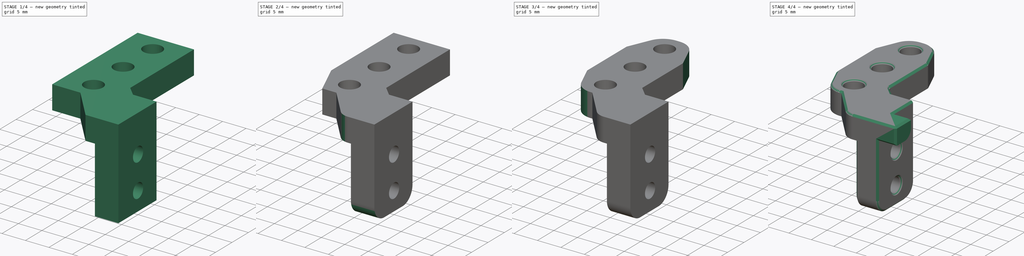
[diagram: build sequence overview — one tinted view per stage of 4, left to right]
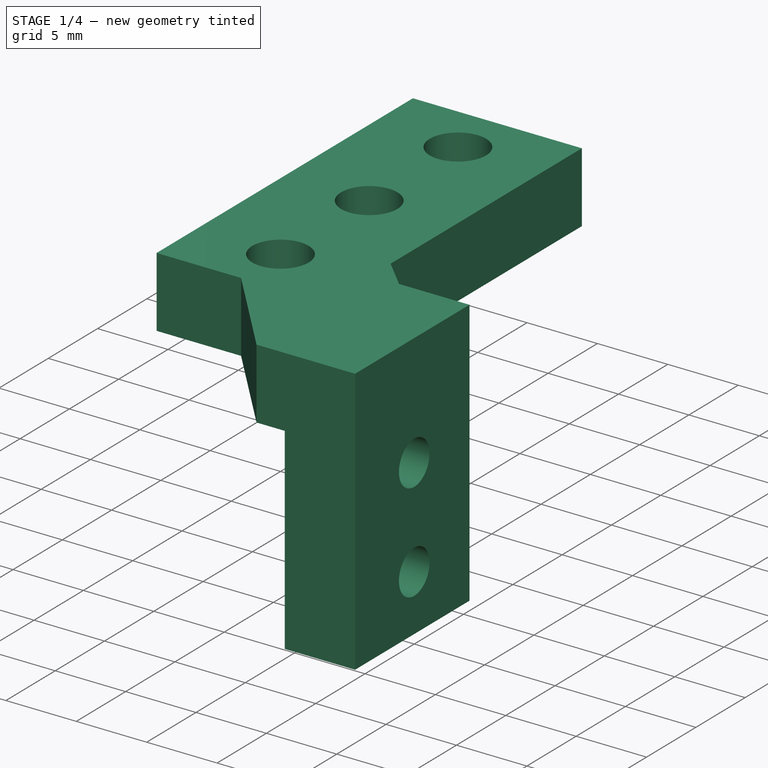
[diagram: stage 1 of 4 — iso view after this stage's code; geometry added in this stage tinted green]
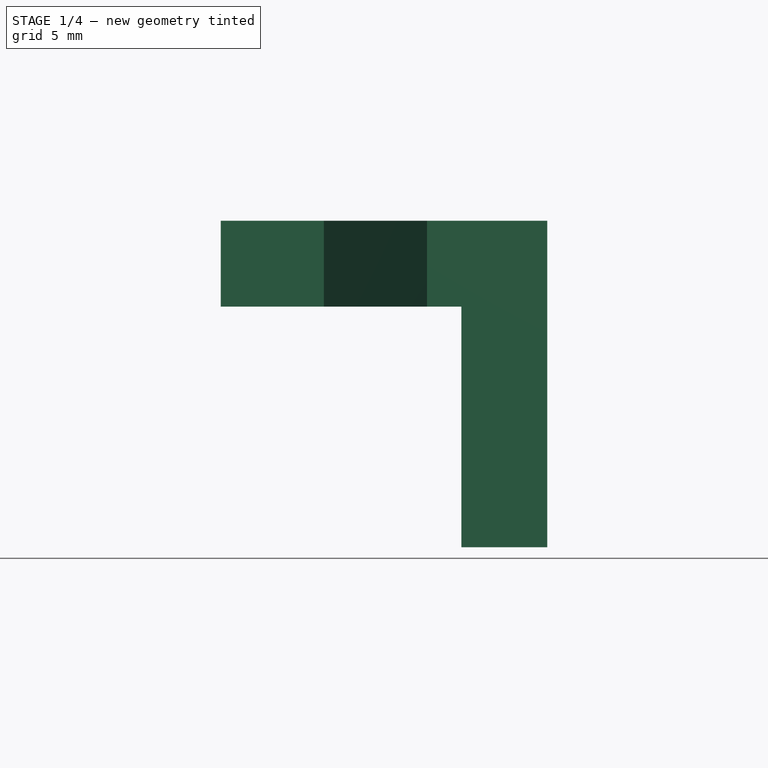
[diagram: stage 1 of 4 — front view after this stage's code; geometry added in this stage tinted green]
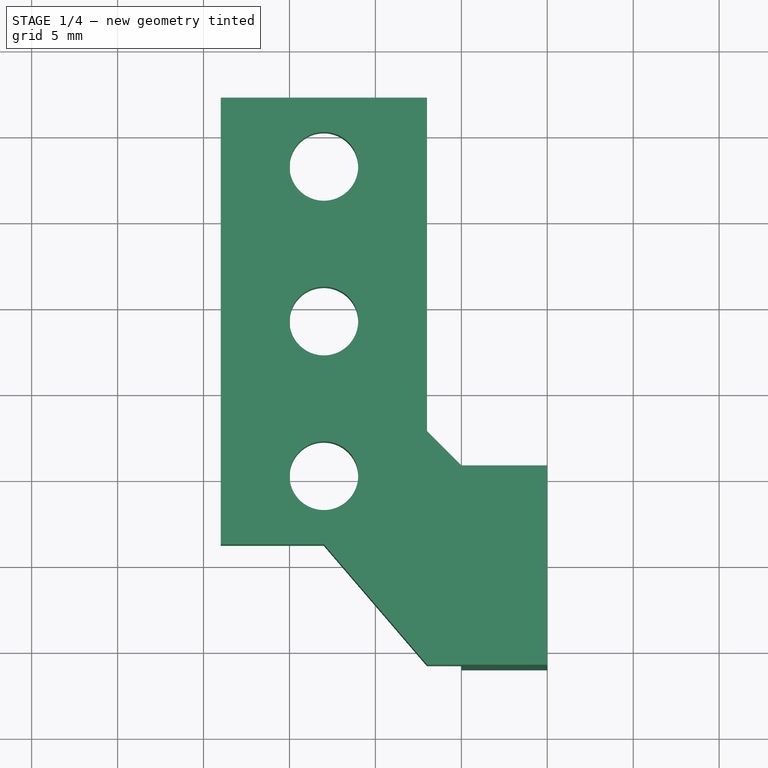
[diagram: stage 1 of 4 — top view after this stage's code; geometry added in this stage tinted green]
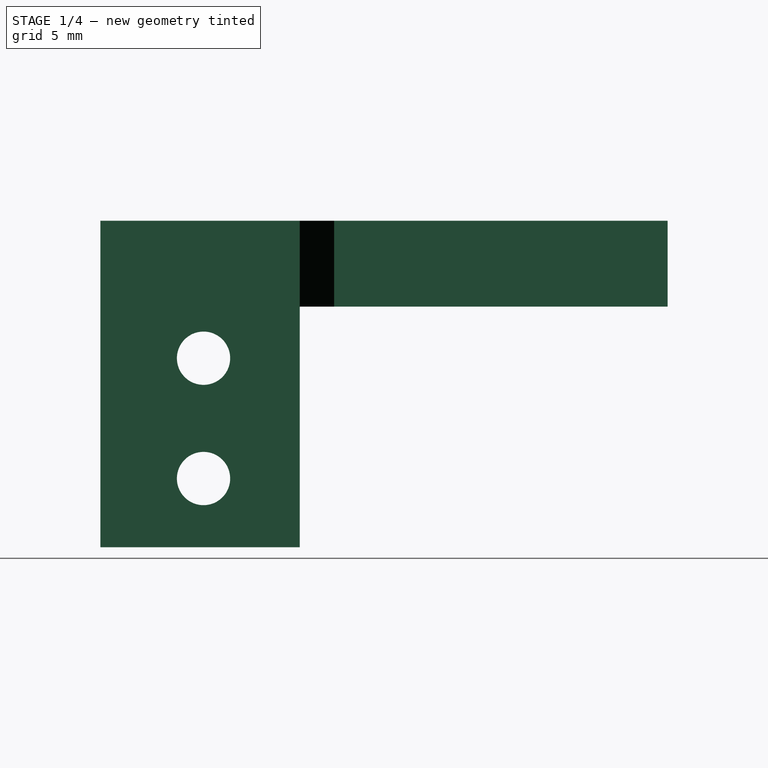
[diagram: stage 1 of 4 — right view after this stage's code; geometry added in this stage tinted green]
FCSTD DOCUMENT  (FreeCAD 0.19R24366 (Git))
Label: probe-mount
License: All rights reserved
LicenseURL: http://en.wikipedia.org/wiki/All_rights_reserved
objects: Part::Feature×10, PartDesign::Chamfer×5, PartDesign::Fillet×5, Sketcher::SketchObject×4, PartDesign::Pad×3, App::Part×1, PartDesign::Pocket×1, PartDesign::Body×1
note: 43 computed .brp shape members not serialized (recipe doc carries the construction recipe); baked Part::Feature solids carry a one-line shape summary decoded from their .brp

FEATURE [Part::Feature] Chamfer001  label="front-PREF"
  Placement = pos=(16.5,0,-11) rot=(0,0,1;0rad)
  shape: bbox 33 x 27 x 43 mm, 58 faces (baked)
FEATURE [Part::Feature] Chamfer005021077002004001  label="back-PREF"
  Placement = pos=(0,16,0) rot=(0,0,1;0rad)
  shape: bbox 76.8 x 27 x 53 mm, 121 faces (baked)
FEATURE [Part::Feature] Chamfer013001  label="fan-mounter-PREF"
  Placement = pos=(16.5,-16,-11) rot=(1,0,0;1.5708rad)
  shape: bbox 60.95 x 12 x 48.7 mm, 129 faces (baked)
FEATURE [Part::Feature] Part__Feature051  label="bear-duct-PREF"
  Placement = pos=(16.525,0,-28.53) rot=(0,0,1;0rad)
  shape: bbox 46.01 x 38.99 x 18.01 mm, 128 faces (baked)
FEATURE [Part::Feature] Part__Feature027  label="block"
  Placement = pos=(-15,-8,-14.1) rot=(0,0,1;0rad)
  shape: bbox 23 x 16 x 11.5 mm, 37 faces (baked)
FEATURE [Part::Feature] Part__Feature028  label="nozzle"
  Placement = pos=(7e-15,-3.6e-14,-7) rot=(1,0,0;3.14159rad)
  shape: bbox 7 x 8.083 x 12.5 mm, 18 faces (baked)
FEATURE [Part::Feature] Part__Feature024  label="sink"
  Placement = pos=(0,-4e-15,-1e-15) rot=(0,0,1;0rad)
  shape: bbox 22.3 x 22.3 x 44.7 mm, 70 faces (baked)
FEATURE [Part::Feature] Part__Feature025  label="ptfe"
  Placement = pos=(4e-15,-3.6e-14,9.6) rot=(0,0,1;0rad)
  shape: bbox 4 x 4 x 50 mm, 6 faces (baked)
FEATURE [Part::Feature] Part__Feature026  label="break"
  Placement = pos=(4e-15,-3.6e-14,15) rot=(1,0,0;3.14159rad)
  shape: bbox 6.884 x 6.884 x 22.1 mm, 15 faces (baked)
FEATURE [App::Part] e3d_v6_v18  label="e3d_v6 v18"
  Group = -> [Part__Feature024,Part__Feature025,Part__Feature026,Part__Feature027,Part__Feature028]
  Origin = -> Origin009
  Placement = pos=(16.5,1.8e-15,-10.7) rot=(0,0,-1;1.5708rad)
FEATURE [Part::Feature] Part__Feature112001140  label="BL-touch v3.x003"
  Placement = pos=(-12.4942,-8.00647,13.3013) rot=(0,0,1;4.71239rad)
  shape: bbox 16.53 x 26.01 x 53.81 mm, 111 faces (baked)
FEATURE [Sketcher::SketchObject] Sketch
  FullyConstrained = true
  MapMode = 5
  Support = -> [XY_Plane]
  sketch-geometry (11):
    g0: Circle CenterX=-13 CenterY=23 CenterZ=0 NormalX=0 NormalY=0 NormalZ=1 AngleXU=0 Radius=2
    g1: Circle CenterX=-13 CenterY=14 CenterZ=0 NormalX=0 NormalY=0 NormalZ=1 AngleXU=0 Radius=2
    g2: Circle CenterX=-13 CenterY=5 CenterZ=0 NormalX=0 NormalY=0 NormalZ=1 AngleXU=0 Radius=2
    g3: LineSegment StartX=0 StartY=5.6 StartZ=0 EndX=0 EndY=-6 EndZ=0
    g4: LineSegment StartX=-19 StartY=27 StartZ=0 EndX=-19 EndY=1 EndZ=0
    g5: LineSegment StartX=-19 StartY=1 StartZ=0 EndX=-13 EndY=1 EndZ=0
    g6: LineSegment StartX=-19 StartY=27 StartZ=0 EndX=-7 EndY=27 EndZ=0
    g7: LineSegment StartX=-7 StartY=27 StartZ=0 EndX=-7 EndY=5.6 EndZ=0
    g8: LineSegment StartX=0 StartY=5.6 StartZ=0 EndX=-7 EndY=5.6 EndZ=0
    g9: LineSegment StartX=0 StartY=-6 StartZ=0 EndX=-7 EndY=-6 EndZ=0
    g10: LineSegment StartX=-13 StartY=1 StartZ=0 EndX=-7 EndY=-6 EndZ=0
  constraints (33):
    c: Vertical(g2,g1)
    c: Vertical(g1,g0)
    c: DistanceY(g2,g0) = 18
    c: DistanceY(g1,g0) = 9
    c: Equal(g0,g2)
    c: Radius(g0) = 2
    c: Radius(g1) = 2
    c: DistanceX(g1,g-1) = 13
    c: DistanceY(g-1,g1) = 14
    c: PointOnObject(g3,g-2)
    c: PointOnObject(g3,g-2)
    c: DistanceY(g-1,g3) = 5.6
    c: DistanceY(g3,g3) = 11.6
    c: Vertical(g4)
    c: Coincident(g4,g5)
    c: Horizontal(g5)
    c: Coincident(g4,g6)
    c: Horizontal(g6)
    c: Coincident(g6,g7)
    c: Vertical(g7)
    c: DistanceX(g4,g0) = 6
    c: DistanceX(g6,g6) = 12
    c: DistanceY(g0,g4) = 4
    c: DistanceY(g4,g2) = 4
    c: Coincident(g8,g3)
    c: Horizontal(g8)
    c: Coincident(g8,g7)
    c: Coincident(g9,g3)
    c: Horizontal(g9)
    c: Vertical(g9,g7)
    c: Coincident(g10,g5)
    c: Coincident(g10,g9)
    c: DistanceX(g5,g9) = 6
FEATURE [PartDesign::Pad] Pad
  Direction = (1,1,1)
  Length = 5
  Length2 = 100
  Profile = -> Sketch
  Type = 0
FEATURE [Sketcher::SketchObject] Sketch001
  ExternalGeometry = -> [Pad]
  FullyConstrained = true
  MapMode = 5
  Placement = pos=(0,0,0) rot=(1,0,0;3.14159rad)
  Support = -> [Pad]
  sketch-geometry (4):
    g0: LineSegment StartX=0 StartY=6 StartZ=0 EndX=-5 EndY=6 EndZ=0
    g1: LineSegment StartX=-5 StartY=6 StartZ=0 EndX=-5 EndY=-5.6 EndZ=0
    g2: LineSegment StartX=-5 StartY=-5.6 StartZ=0 EndX=0 EndY=-5.6 EndZ=0
    g3: LineSegment StartX=0 StartY=-5.6 StartZ=0 EndX=0 EndY=6 EndZ=0
  constraints (11):
    c: Coincident(g0,g1)
    c: Coincident(g1,g2)
    c: Coincident(g2,g3)
    c: Coincident(g3,g0)
    c: Horizontal(g0)
    c: Horizontal(g2)
    c: Vertical(g1)
    c: Vertical(g3)
    c: Coincident(g0,g-3)
    c: PointOnObject(g1,g-4)
    c: DistanceX(g0,g0) = 5
FEATURE [PartDesign::Pad] Pad001
  BaseFeature = -> Pad
  Direction = (1,1,1)
  Length = 14
  Length2 = 100
  Profile = -> Sketch001
  Type = 0
FEATURE [Sketcher::SketchObject] Sketch002
  ExternalGeometry = -> [Pad001]
  FullyConstrained = true
  MapMode = 5
  Placement = pos=(-5,0,0) rot=(0.57735,-0.57735,-0.57735;2.0944rad)
  Support = -> [Pad001]
  sketch-geometry (2):
    g0: Circle CenterX=-3e-16 CenterY=-3 CenterZ=0 NormalX=0 NormalY=0 NormalZ=1 AngleXU=0 Radius=1.55
    g1: Circle CenterX=-3e-16 CenterY=-10 CenterZ=0 NormalX=0 NormalY=0 NormalZ=1 AngleXU=0 Radius=1.55
  constraints (6):
    c: Vertical(g1,g0)
    c: DistanceX(g-3,g0) = 5.6
    c: DistanceY(g0,g-1) = 3
    c: DistanceY(g1,g0) = 7
    c: Equal(g1,g0)
    c: Radius(g0) = 1.55
FEATURE [PartDesign::Pocket] Pocket
  BaseFeature = -> Pad001
  Length = 5
  Length2 = 100
  Profile = -> Sketch002
  Type = 1
FEATURE [PartDesign::Chamfer] Chamfer
  Angle = 45
  Base = -> Pocket [Edge8]
  BaseFeature = -> Pocket
  ChamferType = 0
  FlipDirection = false
  Refine = true
  Size = 2
  Size2 = 1
  SupportTransform = false
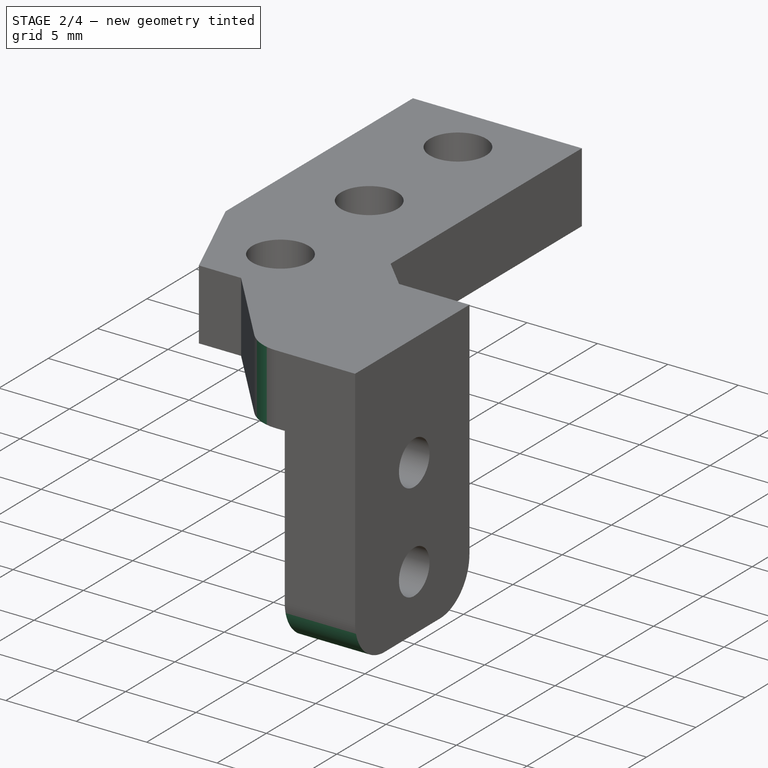
[diagram: stage 2 of 4 — iso view after this stage's code; geometry added in this stage tinted green]
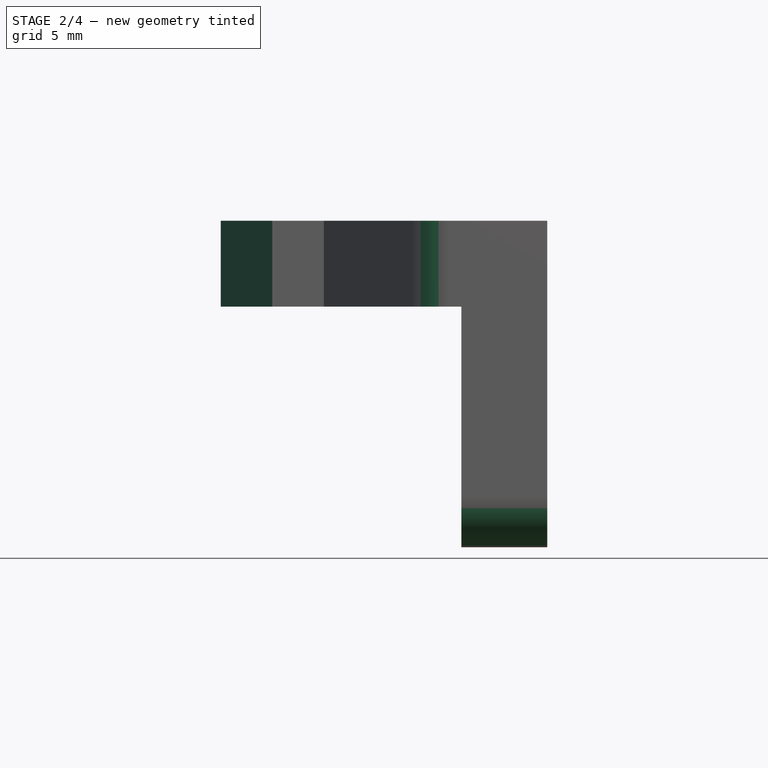
[diagram: stage 2 of 4 — front view after this stage's code; geometry added in this stage tinted green]
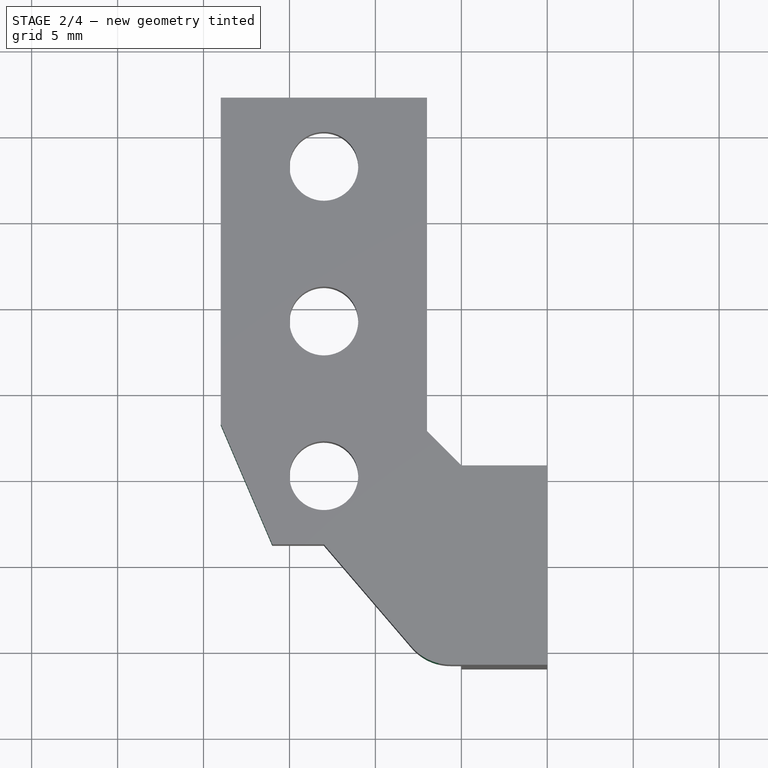
[diagram: stage 2 of 4 — top view after this stage's code; geometry added in this stage tinted green]
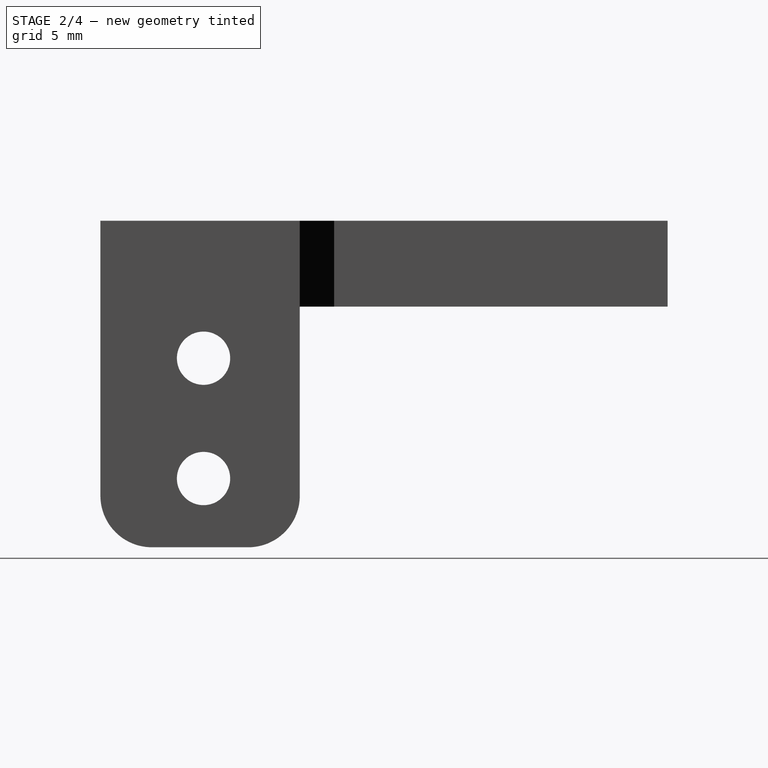
[diagram: stage 2 of 4 — right view after this stage's code; geometry added in this stage tinted green]
FEATURE [PartDesign::Fillet] Fillet
  Base = -> Chamfer [Edge35]
  BaseFeature = -> Chamfer
  Radius = 3
  SupportTransform = false
FEATURE [PartDesign::Fillet] Fillet001
  Base = -> Fillet [Edge48,Edge16]
  BaseFeature = -> Fillet
  Radius = 3
  SupportTransform = false
FEATURE [PartDesign::Chamfer] Chamfer005021077002004002
  Angle = 45
  Base = -> Fillet001 [Edge50]
  BaseFeature = -> Fillet001
  ChamferType = 1
  FlipDirection = false
  Size = 3
  Size2 = 7
  SupportTransform = false
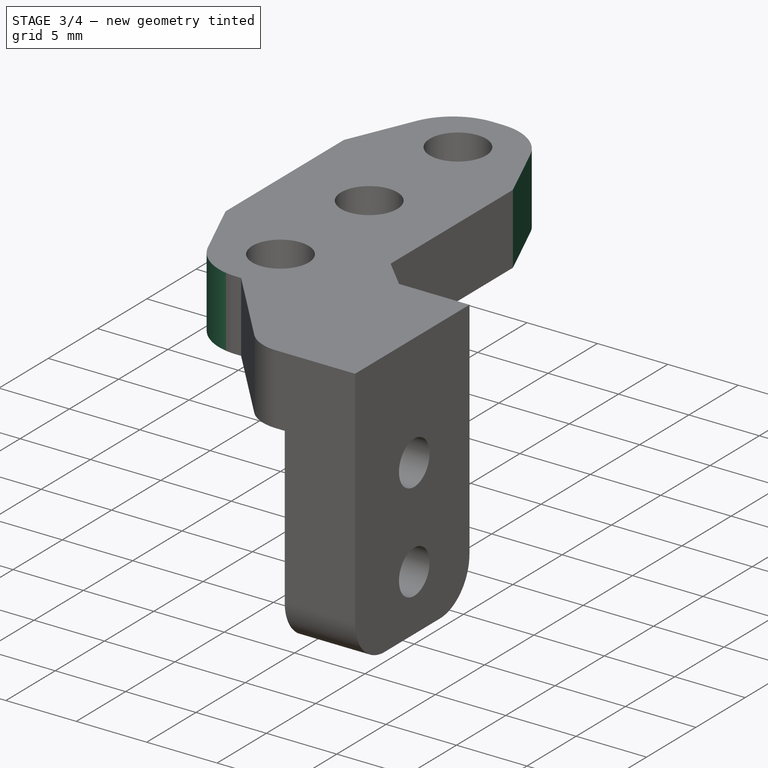
[diagram: stage 3 of 4 — iso view after this stage's code; geometry added in this stage tinted green]
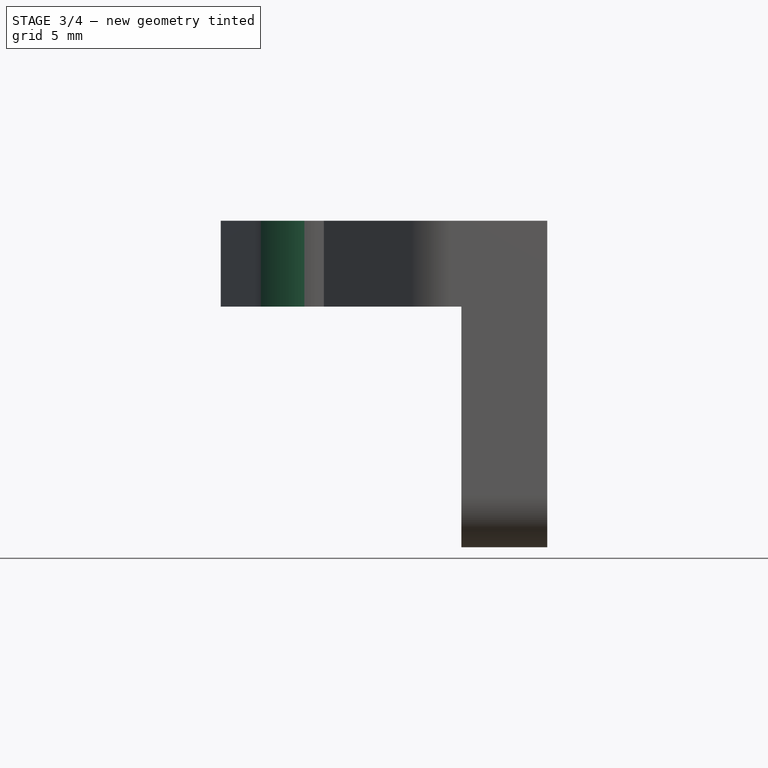
[diagram: stage 3 of 4 — front view after this stage's code; geometry added in this stage tinted green]
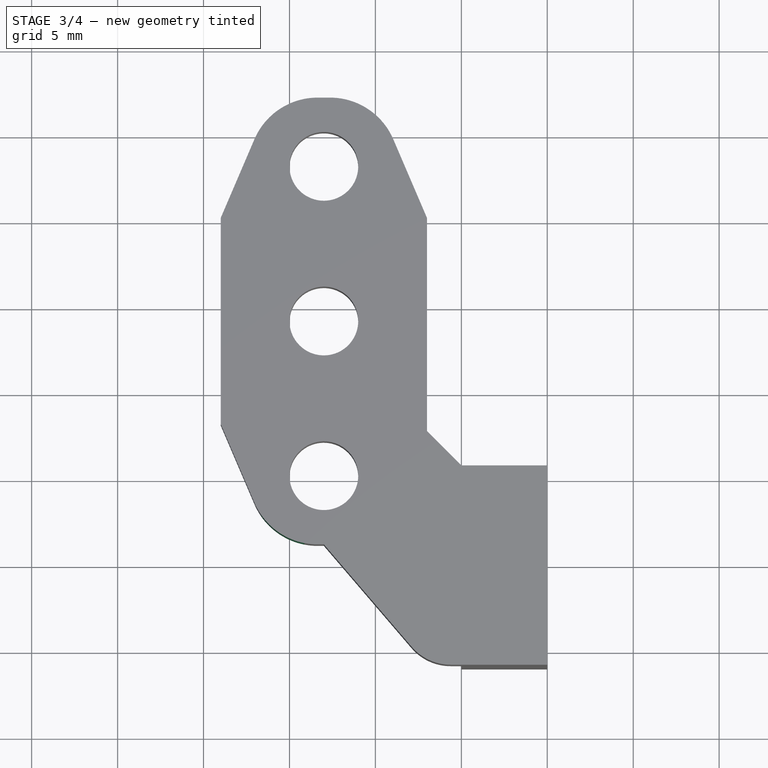
[diagram: stage 3 of 4 — top view after this stage's code; geometry added in this stage tinted green]
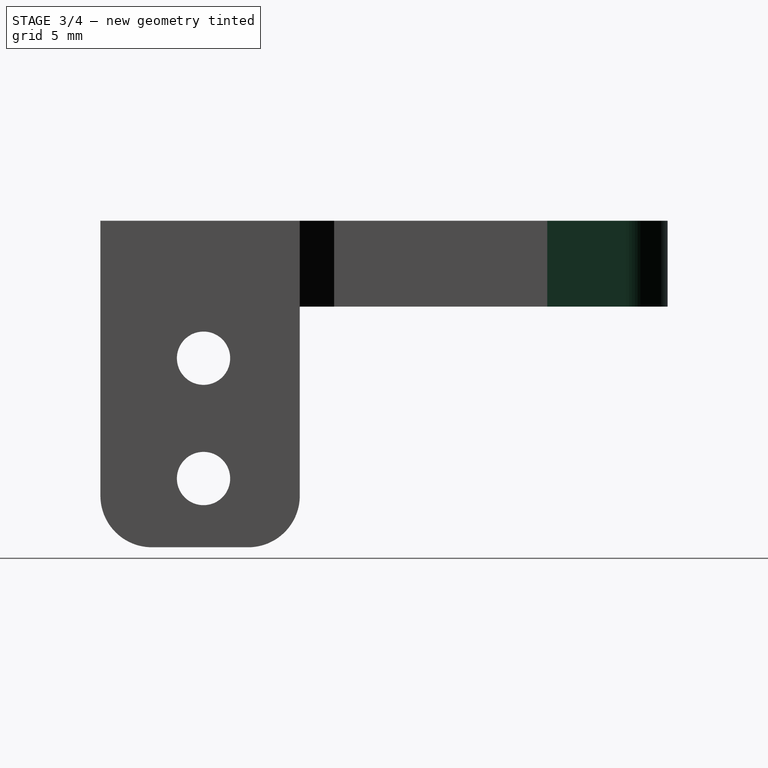
[diagram: stage 3 of 4 — right view after this stage's code; geometry added in this stage tinted green]
FEATURE [PartDesign::Chamfer] Chamfer005021077002004003
  Angle = 45
  Base = -> Chamfer005021077002004002 [Edge23]
  BaseFeature = -> Chamfer005021077002004002
  ChamferType = 1
  FlipDirection = false
  Size = 7
  Size2 = 3
  SupportTransform = false
FEATURE [PartDesign::Chamfer] Chamfer005021077002004004
  Angle = 45
  Base = -> Chamfer005021077002004003 [Edge24]
  BaseFeature = -> Chamfer005021077002004003
  ChamferType = 1
  FlipDirection = false
  Size = 3
  Size2 = 7
  SupportTransform = false
FEATURE [PartDesign::Fillet] Fillet002
  Base = -> Chamfer005021077002004004 [Edge31,Edge19,Edge18]
  BaseFeature = -> Chamfer005021077002004004
  Radius = 4
  SupportTransform = false
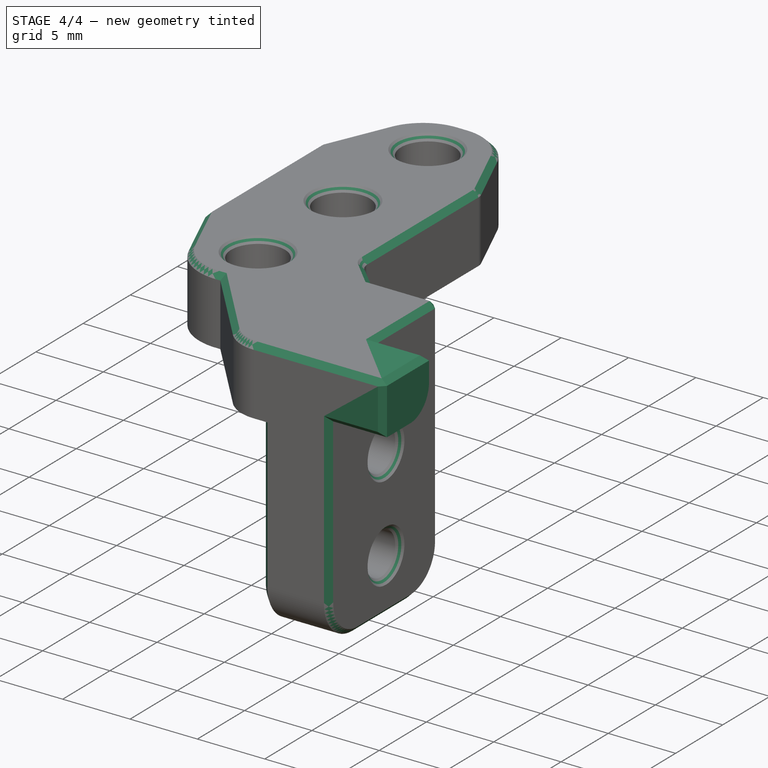
[diagram: stage 4 of 4 — iso view after this stage's code; geometry added in this stage tinted green]
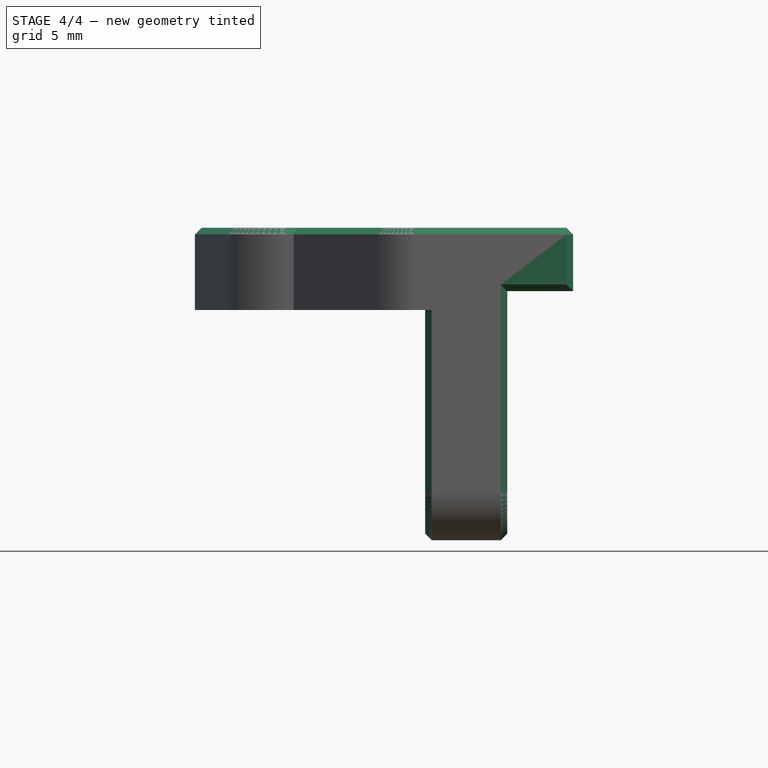
[diagram: stage 4 of 4 — front view after this stage's code; geometry added in this stage tinted green]
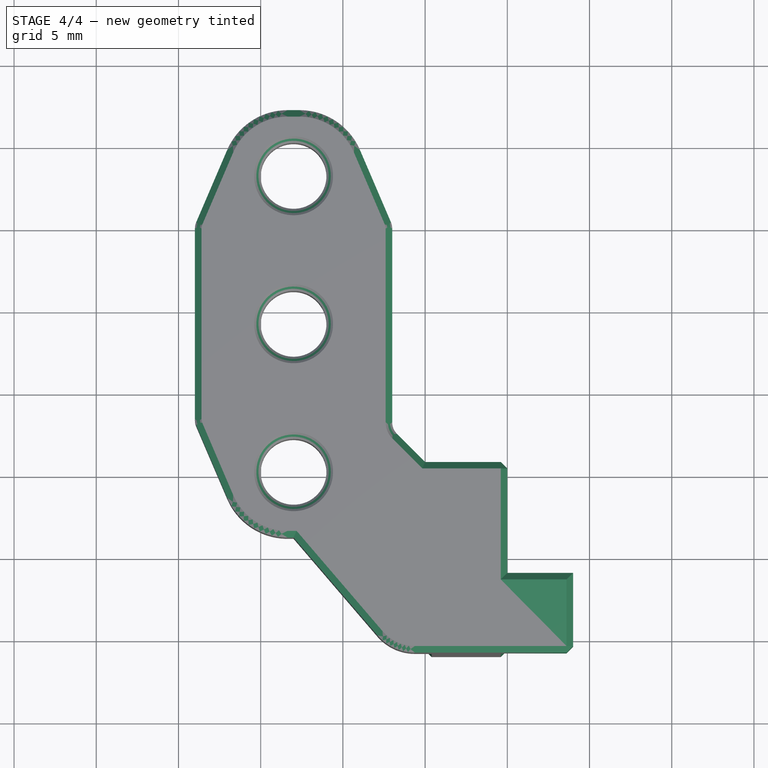
[diagram: stage 4 of 4 — top view after this stage's code; geometry added in this stage tinted green]
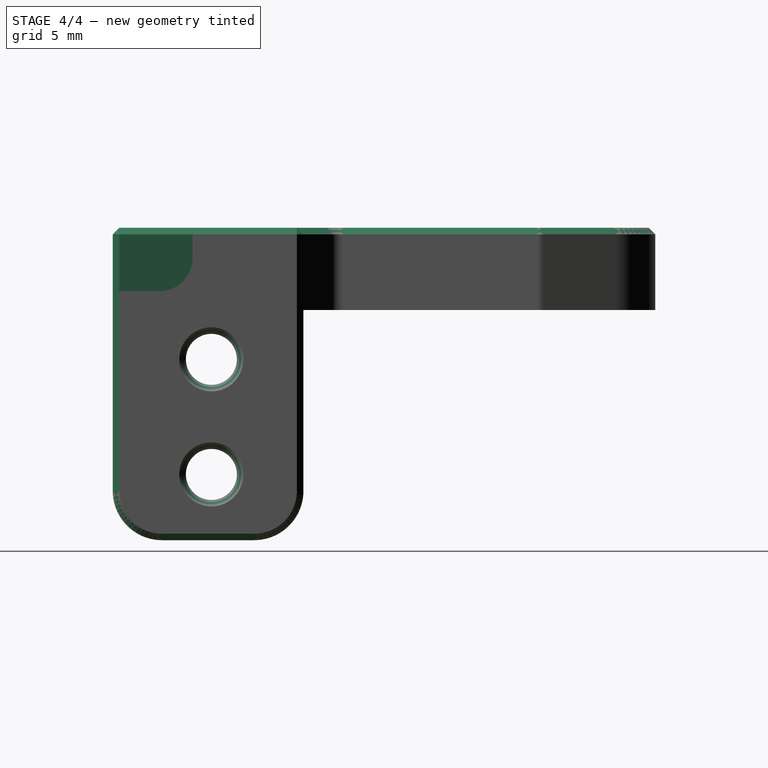
[diagram: stage 4 of 4 — right view after this stage's code; geometry added in this stage tinted green]
FEATURE [PartDesign::Fillet] Fillet003
  Base = -> Fillet002 [Edge28,Edge32,Edge30,Edge34]
  BaseFeature = -> Fillet002
  Radius = 1
  SupportTransform = false
FEATURE [Sketcher::SketchObject] Sketch003
  ExternalGeometry = -> [Fillet003]
  FullyConstrained = true
  MapMode = 5
  Placement = pos=(0,0,0) rot=(0.57735,0.57735,0.57735;2.0944rad)
  Support = -> [Fillet003]
  sketch-geometry (4):
    g0: LineSegment StartX=-6 StartY=5 StartZ=0 EndX=-1.15 EndY=5 EndZ=0
    g1: LineSegment StartX=-1.15 StartY=5 StartZ=0 EndX=-1.15 EndY=1.15 EndZ=0
    g2: LineSegment StartX=-1.15 StartY=1.15 StartZ=0 EndX=-6 EndY=1.15 EndZ=0
    g3: LineSegment StartX=-6 StartY=1.15 StartZ=0 EndX=-6 EndY=5 EndZ=0
  constraints (11):
    c: Coincident(g0,g1)
    c: Coincident(g1,g2)
    c: Coincident(g2,g3)
    c: Coincident(g3,g0)
    c: Horizontal(g0)
    c: Horizontal(g2)
    c: Vertical(g1)
    c: Vertical(g3)
    c: Coincident(g0,g-4)
    c: DistanceX(g0,g0) = 4.85
    c: DistanceY(g3,g3) = 3.85
FEATURE [PartDesign::Pad] Pad002
  BaseFeature = -> Fillet003
  Direction = (1,1,1)
  Length = 4
  Length2 = 100
  Profile = -> Sketch003
  Type = 0
FEATURE [PartDesign::Fillet] Fillet004
  Base = -> Pad002 [Edge94]
  BaseFeature = -> Pad002
  Radius = 2
  Refine = true
  SupportTransform = false
FEATURE [PartDesign::Chamfer] Chamfer005021077002004005
  Angle = 45
  Base = -> Fillet004 [Face35,Edge59,Edge54,Edge56,Edge35,Edge36,Edge28,Edge30,Edge32,Edge34,Edge33,Edge38,Edge60,Edge46,Edge47,Edge53,Edge51,Edge23,Edge24,Edge25]
  BaseFeature = -> Fillet004
  ChamferType = 0
  FlipDirection = false
  Size = 0.4
  Size2 = 1
  SupportTransform = false
FEATURE [PartDesign::Body] Body  label="bltouch-mount"
  Group = -> [Sketch,Pad,Sketch001,Pad001,Sketch002,Pocket,Chamfer,Fillet,Fillet001,Chamfer005021077002004002,Chamfer005021077002004003,Chamfer005021077002004004,Fillet002,Fillet003,Sketch003,Pad002,Fillet004,Chamfer005021077002004005]
  Origin = -> Origin
  Placement = pos=(0.5,-22,13) rot=(0,0,1;0rad)
  Tip = -> Chamfer005021077002004005
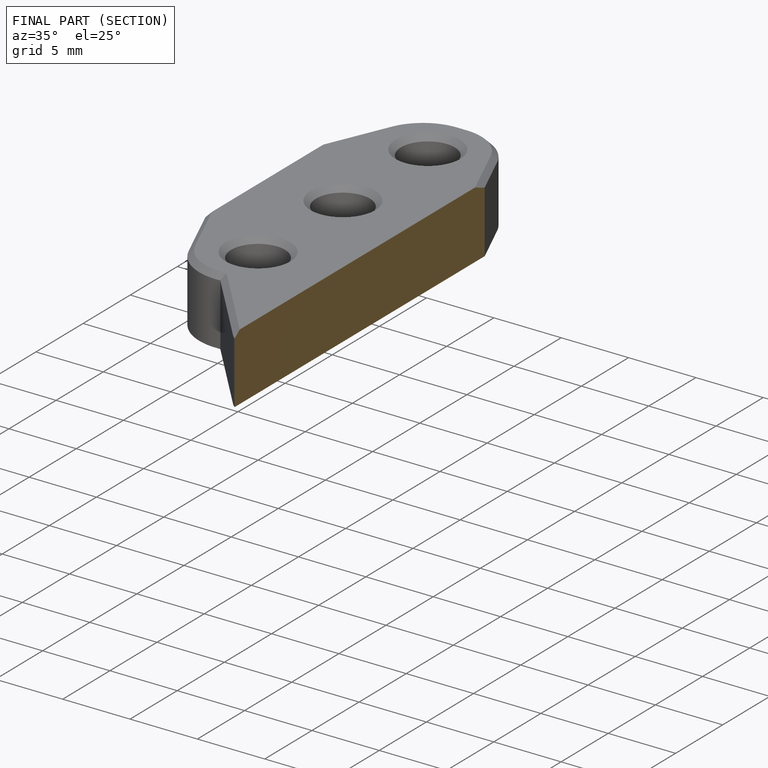
[diagram: finished part — half-section view (interior)]
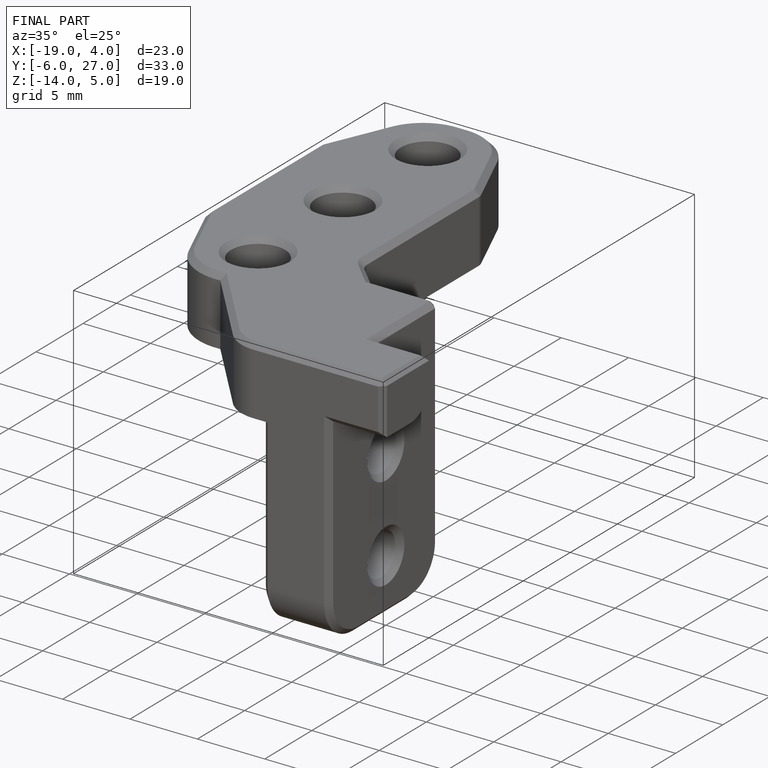
[diagram: finished part — iso view with bounding-box wireframe]
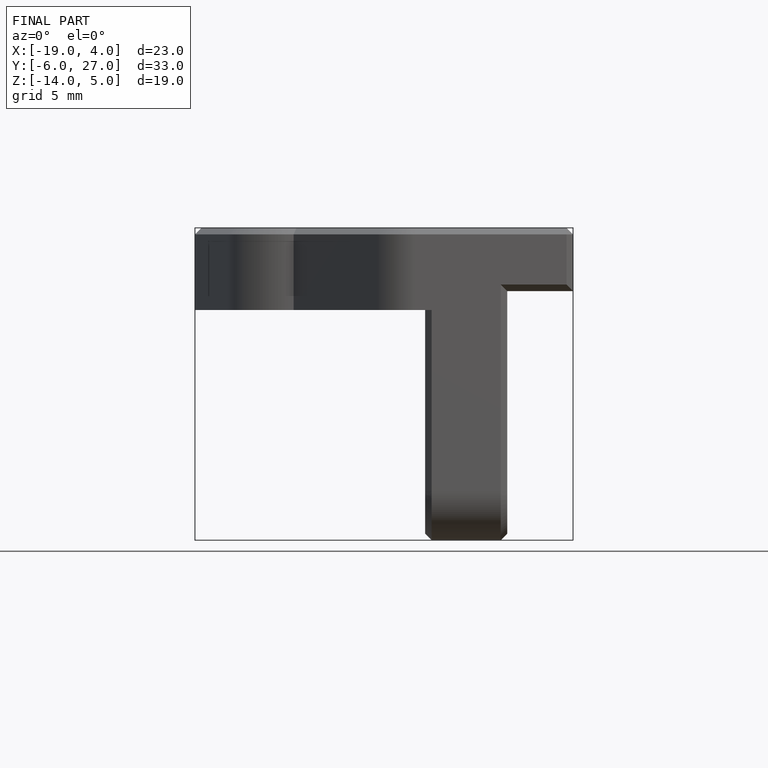
[diagram: finished part — front view with bounding-box wireframe]
